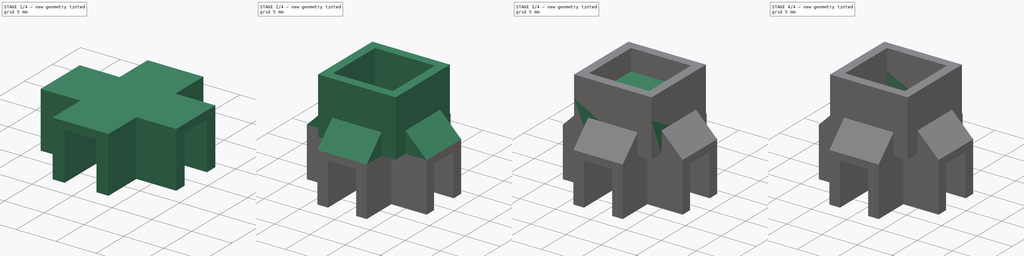
[diagram: build sequence overview — one tinted view per stage of 4, left to right]
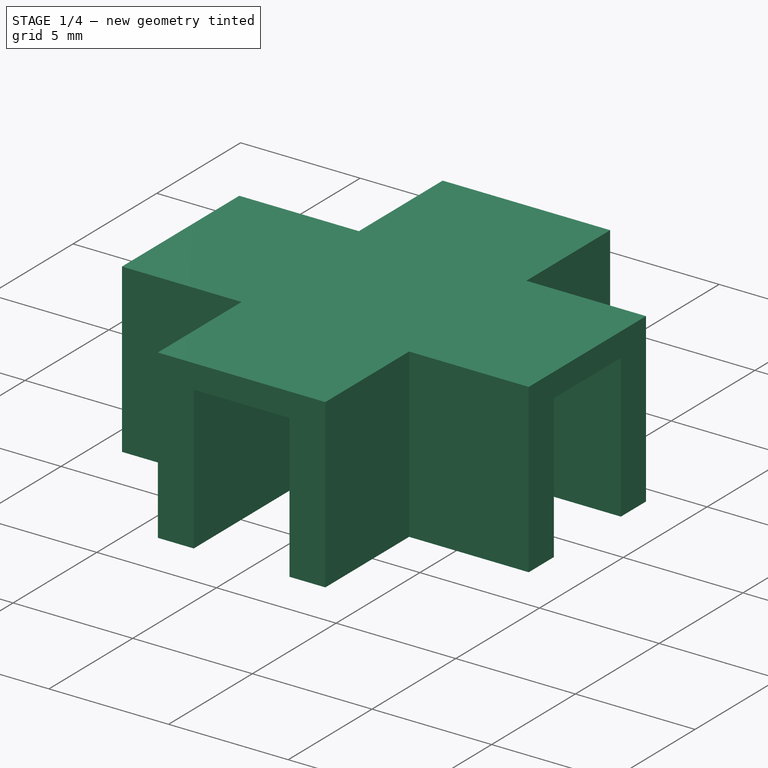
[diagram: stage 1 of 4 — iso view after this stage's code; geometry added in this stage tinted green]
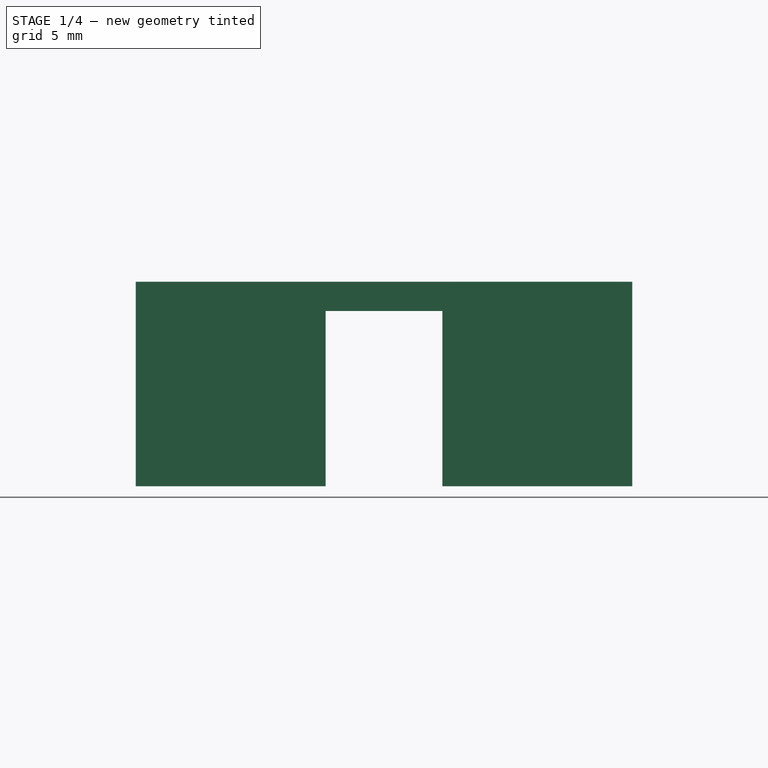
[diagram: stage 1 of 4 — front view after this stage's code; geometry added in this stage tinted green]
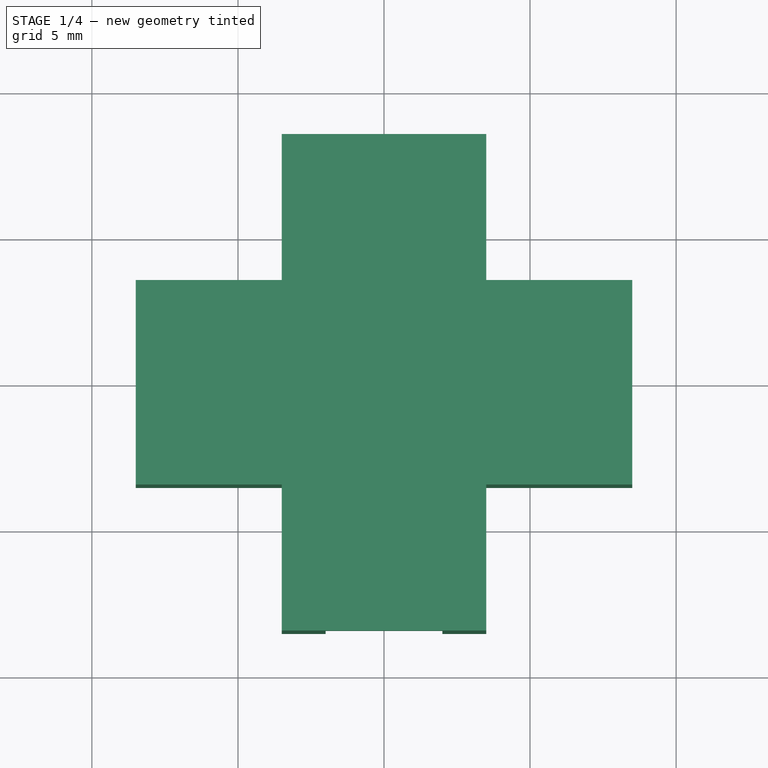
[diagram: stage 1 of 4 — top view after this stage's code; geometry added in this stage tinted green]
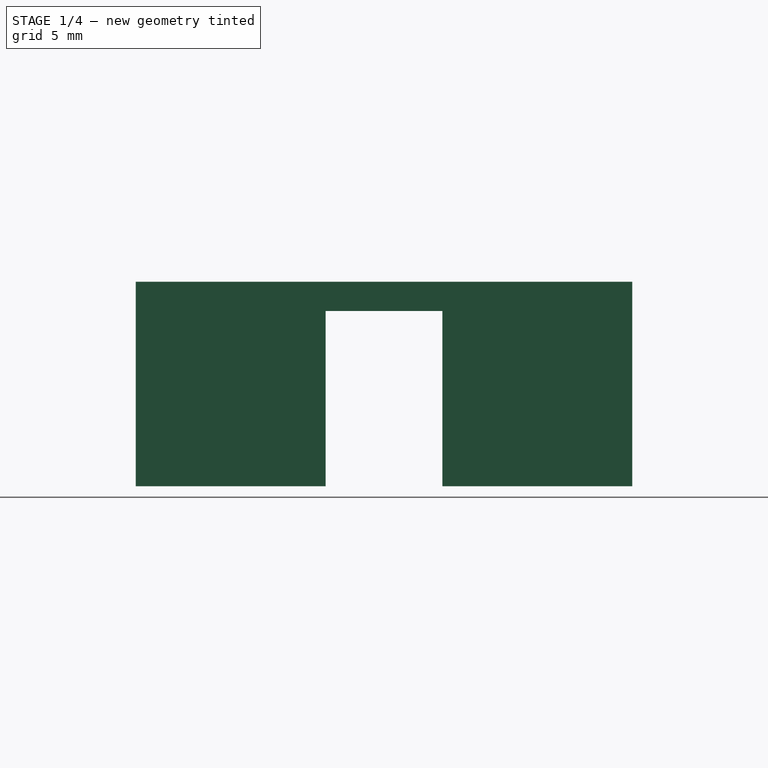
[diagram: stage 1 of 4 — right view after this stage's code; geometry added in this stage tinted green]
FCSTD DOCUMENT  (FreeCAD 0.20R29603 (Git))
Label: UnlockDroneCore
License: All rights reserved
LicenseURL: http://en.wikipedia.org/wiki/All_rights_reserved
objects: Sketcher::SketchObject×8, PartDesign::Pad×4, PartDesign::Pocket×4, PartDesign::Chamfer×2, PartDesign::Body×2
note: 30 computed .brp shape members not serialized (recipe doc carries the construction recipe); baked Part::Feature solids carry a one-line shape summary decoded from their .brp

FEATURE [PartDesign::Body] Body  label="WhitePart"
  Group = -> [Sketch,Pad,Sketch001,Pocket,Sketch002,Pad001,Sketch003,Pocket001,Chamfer]
  Origin = -> Origin
  Tip = -> Chamfer
FEATURE [Sketcher::SketchObject] Sketch004
  FullyConstrained = true
  MapMode = 5
  Support = -> [XY_Plane001]
  sketch-geometry (19):
    g0: LineSegment StartX=-8.5 StartY=3.5 StartZ=0 EndX=-8.5 EndY=-3.5 EndZ=0
    g1: LineSegment StartX=-8.5 StartY=-3.5 StartZ=0 EndX=-3.5 EndY=-3.5 EndZ=0
    g2: LineSegment StartX=8.5 StartY=-3.5 StartZ=0 EndX=8.5 EndY=3.5 EndZ=0
    g3: LineSegment StartX=8.5 StartY=3.5 StartZ=0 EndX=3.5 EndY=3.5 EndZ=0
    g4: GeomPoint X=0 Y=0 Z=0
    g5: LineSegment StartX=-3.5 StartY=8.5 StartZ=0 EndX=-3.5 EndY=3.5 EndZ=0
    g6: LineSegment StartX=-3.5 StartY=-8.5 StartZ=0 EndX=3.5 EndY=-8.5 EndZ=0
    g7: LineSegment StartX=3.5 StartY=-8.5 StartZ=0 EndX=3.5 EndY=-3.5 EndZ=0
    g8: LineSegment StartX=3.5 StartY=8.5 StartZ=0 EndX=-3.5 EndY=8.5 EndZ=0
    g9: GeomPoint X=0 Y=0 Z=0
    g10: LineSegment StartX=3.5 StartY=3.5 StartZ=0 EndX=3.5 EndY=8.5 EndZ=0
    g11: LineSegment StartX=-3.5 StartY=3.5 StartZ=0 EndX=-8.5 EndY=3.5 EndZ=0
    g12: LineSegment StartX=-3.5 StartY=-3.5 StartZ=0 EndX=-3.5 EndY=-8.5 EndZ=0
    g13: LineSegment StartX=3.5 StartY=-3.5 StartZ=0 EndX=8.5 EndY=-3.5 EndZ=0
    g14: LineSegment StartX=-3.5 StartY=3.5 StartZ=0 EndX=-3.5 EndY=-3.5 EndZ=0
    g15: LineSegment StartX=-3.5 StartY=-3.5 StartZ=0 EndX=3.5 EndY=-3.5 EndZ=0
    g16: LineSegment StartX=3.5 StartY=-3.5 StartZ=0 EndX=3.5 EndY=3.5 EndZ=0
    g17: LineSegment StartX=3.5 StartY=3.5 StartZ=0 EndX=-3.5 EndY=3.5 EndZ=0
    g18: GeomPoint X=0 Y=0 Z=0
  constraints (44):
    c: Coincident(g0,g1)
    c: Coincident(g13,g2)
    c: Coincident(g2,g3)
    c: Coincident(g11,g0)
    c: Horizontal(g1)
    c: Horizontal(g3)
    c: Vertical(g0)
    c: Vertical(g2)
    c: Symmetric(g13,g0,g4)
    c: Coincident(g4,g-1)
    c: DistanceX(g11,g3) = 17
    c: DistanceY(g2,g2) = 7
    c: Coincident(g12,g6)
    c: Coincident(g6,g7)
    c: Coincident(g10,g8)
    c: Coincident(g8,g5)
    c: Horizontal(g6)
    c: Horizontal(g8)
    c: Vertical(g5)
    c: Symmetric(g6,g5,g9)
    c: Coincident(g9,g4)
    c: DistanceX(g8,g8) = 7
    c: DistanceY(g7,g10) = 17
    c: Coincident(g3,g10)
    c: Coincident(g5,g11)
    c: Coincident(g1,g12)
    c: Coincident(g13,g7)
    c: Coincident(g14,g15)
    c: Coincident(g15,g16)
    c: Coincident(g16,g17)
    c: Coincident(g17,g14)
    c: Horizontal(g15)
    c: Horizontal(g17)
    c: Vertical(g14)
    c: Vertical(g16)
    c: Symmetric(g15,g14,g18)
    c: Coincident(g18,g4)
    c: DistanceY(g16,g16) = 7
    c: Coincident(g5,g14)
    c: Coincident(g1,g14)
    c: Coincident(g3,g16)
    c: Coincident(g15,g7)
    c: DistanceX(g17,g17) = 7
    c: Vertical(g12)
FEATURE [PartDesign::Pad] Pad002
  Direction = (0,0,1)
  Length = 7
  Length2 = 10
  Profile = -> Sketch004
  ReferenceAxis = -> Sketch004 [N_Axis]
  Type = 0
FEATURE [Sketcher::SketchObject] Sketch005
  ExternalGeometry = -> [Pad002]
  FullyConstrained = true
  MapMode = 5
  Placement = pos=(0,0,0) rot=(1,0,0;3.14159rad)
  Support = -> [Pad002]
  sketch-geometry (17):
    g0: LineSegment StartX=-8.5 StartY=-2 StartZ=0 EndX=-2 EndY=-2 EndZ=0
    g1: LineSegment StartX=-2 StartY=-2 StartZ=0 EndX=-2 EndY=-8.5 EndZ=0
    g2: LineSegment StartX=-2 StartY=-8.5 StartZ=0 EndX=2 EndY=-8.5 EndZ=0
    g3: LineSegment StartX=2 StartY=-8.5 StartZ=0 EndX=2 EndY=-2 EndZ=0
    g4: LineSegment StartX=2 StartY=-2 StartZ=0 EndX=8.5 EndY=-2 EndZ=0
    g5: LineSegment StartX=8.5 StartY=-2 StartZ=0 EndX=8.5 EndY=2 EndZ=0
    g6: LineSegment StartX=8.5 StartY=2 StartZ=0 EndX=2 EndY=2 EndZ=0
    g7: LineSegment StartX=2 StartY=2 StartZ=0 EndX=2 EndY=8.5 EndZ=0
    g8: LineSegment StartX=2 StartY=8.5 StartZ=0 EndX=-2 EndY=8.5 EndZ=0
    g9: LineSegment StartX=-2 StartY=8.5 StartZ=0 EndX=-2 EndY=2 EndZ=0
    g10: LineSegment StartX=-2 StartY=2 StartZ=0 EndX=-8.5 EndY=2 EndZ=0
    g11: LineSegment StartX=-8.5 StartY=2 StartZ=0 EndX=-8.5 EndY=-2 EndZ=0
    g12: LineSegment StartX=-2 StartY=2 StartZ=0 EndX=-2 EndY=-2 EndZ=0
    g13: LineSegment StartX=-2 StartY=-2 StartZ=0 EndX=2 EndY=-2 EndZ=0
    g14: LineSegment StartX=2 StartY=-2 StartZ=0 EndX=2 EndY=2 EndZ=0
    g15: LineSegment StartX=2 StartY=2 StartZ=0 EndX=-2 EndY=2 EndZ=0
    g16: GeomPoint X=0 Y=0 Z=0
  constraints (44):
    c: Horizontal(g0)
    c: Coincident(g0,g1)
    c: Vertical(g1)
    c: Coincident(g1,g2)
    c: Horizontal(g2)
    c: Coincident(g2,g3)
    c: Vertical(g3)
    c: Coincident(g3,g4)
    c: Horizontal(g4)
    c: Coincident(g4,g5)
    c: Coincident(g5,g6)
    c: Coincident(g6,g7)
    c: Coincident(g7,g8)
    c: Coincident(g8,g9)
    c: Coincident(g9,g10)
    c: Coincident(g10,g11)
    c: Coincident(g11,g0)
    c: Coincident(g12,g13)
    c: Coincident(g13,g14)
    c: Coincident(g14,g15)
    c: Coincident(g15,g12)
    c: Horizontal(g13)
    c: Horizontal(g15)
    c: Vertical(g12)
    c: Vertical(g14)
    c: Symmetric(g13,g12,g16)
    c: Coincident(g16,g-1)
    c: Coincident(g14,g6)
    c: Coincident(g9,g12)
    c: Coincident(g12,g0)
    c: Coincident(g13,g3)
    c: Horizontal(g6)
    c: Horizontal(g10)
    c: Vertical(g11)
    c: Vertical(g5)
    c: Vertical(g7)
    c: Vertical(g9)
    c: Horizontal(g8)
    c: DistanceY(g5,g5) = 4
    c: Equal(g5,g8)
    c: PointOnObject(g10,g-6)
    c: PointOnObject(g8,g-3)
    c: PointOnObject(g5,g-4)
    c: PointOnObject(g2,g-5)
FEATURE [PartDesign::Pocket] Pocket002
  BaseFeature = -> Pad002
  Direction = (0,0,1)
  Length = 6
  Length2 = 5
  Profile = -> Sketch005
  ReferenceAxis = -> Sketch005 [N_Axis]
  Type = 0
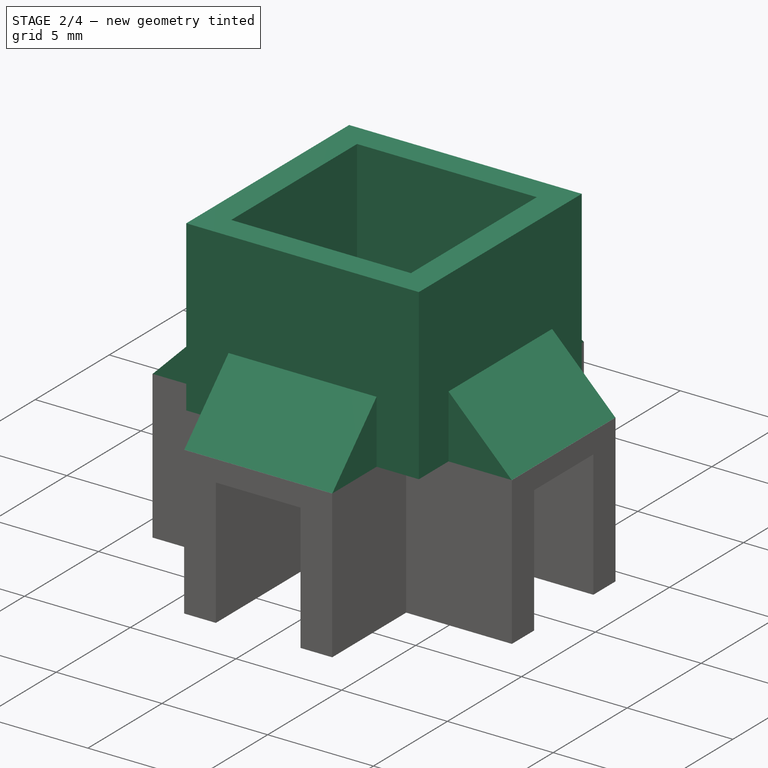
[diagram: stage 2 of 4 — iso view after this stage's code; geometry added in this stage tinted green]
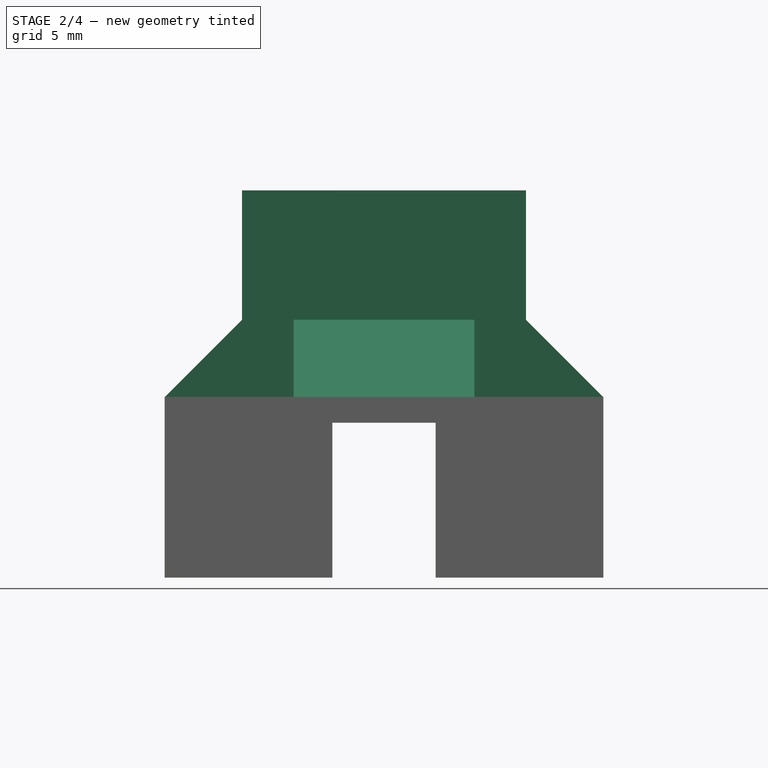
[diagram: stage 2 of 4 — front view after this stage's code; geometry added in this stage tinted green]
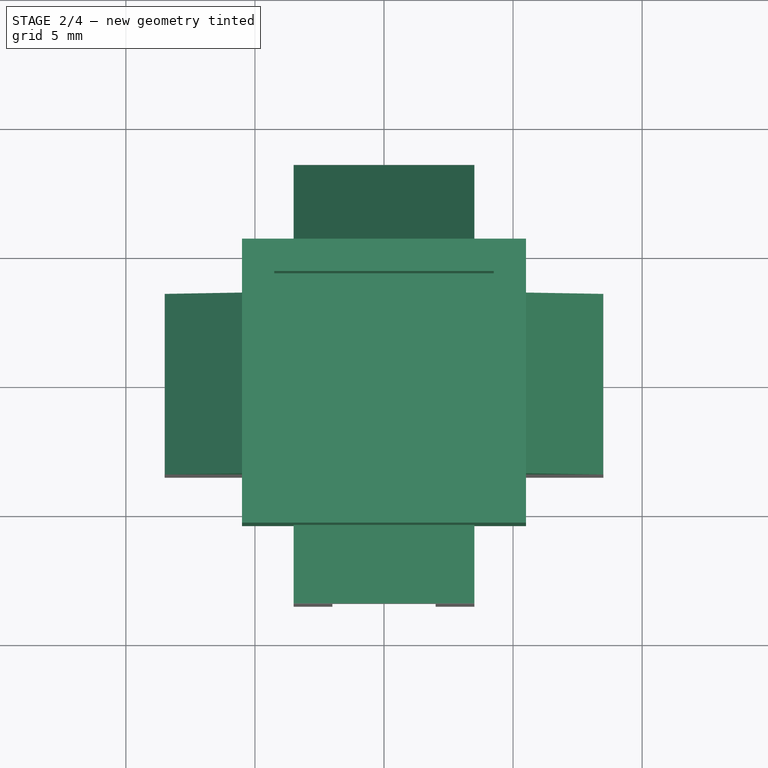
[diagram: stage 2 of 4 — top view after this stage's code; geometry added in this stage tinted green]
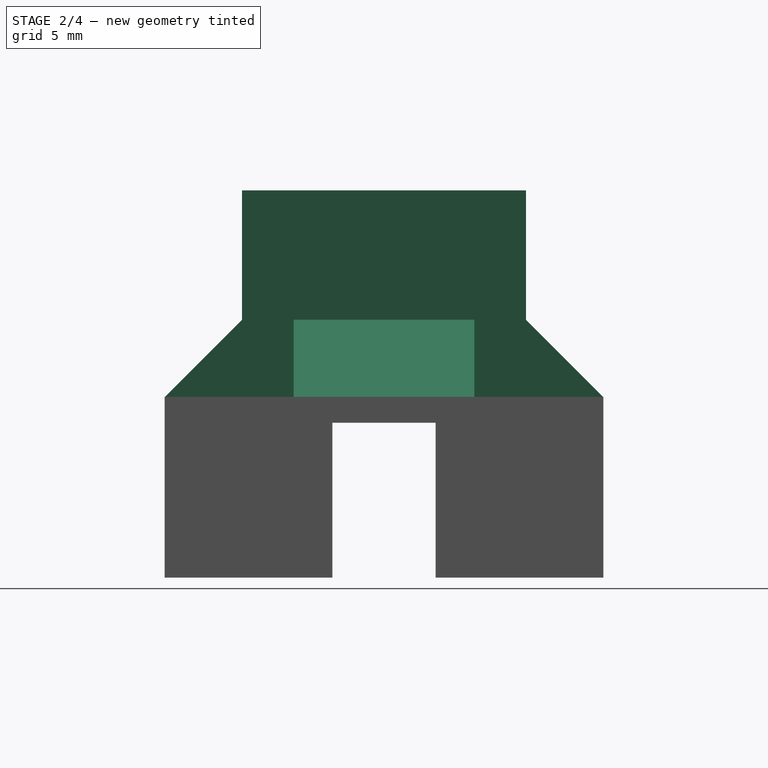
[diagram: stage 2 of 4 — right view after this stage's code; geometry added in this stage tinted green]
FEATURE [Sketcher::SketchObject] Sketch006
  FullyConstrained = true
  MapMode = 5
  Placement = pos=(0,0,7) rot=(0,0,1;0rad)
  Support = -> [Pocket002]
  sketch-geometry (5):
    g0: LineSegment StartX=-5.5 StartY=5.5 StartZ=0 EndX=-5.5 EndY=-5.5 EndZ=0
    g1: LineSegment StartX=-5.5 StartY=-5.5 StartZ=0 EndX=5.5 EndY=-5.5 EndZ=0
    g2: LineSegment StartX=5.5 StartY=-5.5 StartZ=0 EndX=5.5 EndY=5.5 EndZ=0
    g3: LineSegment StartX=5.5 StartY=5.5 StartZ=0 EndX=-5.5 EndY=5.5 EndZ=0
    g4: GeomPoint X=0 Y=0 Z=0
  constraints (12):
    c: Coincident(g0,g1)
    c: Coincident(g1,g2)
    c: Coincident(g2,g3)
    c: Coincident(g3,g0)
    c: Horizontal(g1)
    c: Horizontal(g3)
    c: Vertical(g0)
    c: Vertical(g2)
    c: Symmetric(g1,g0,g4)
    c: Coincident(g4,g-1)
    c: DistanceY(g2,g2) = 11
    c: DistanceX(g3,g3) = 11
FEATURE [PartDesign::Pad] Pad003
  BaseFeature = -> Pocket002
  Direction = (0,0,1)
  Length = 8
  Length2 = 10
  Profile = -> Sketch006
  ReferenceAxis = -> Sketch006 [N_Axis]
  Type = 0
FEATURE [Sketcher::SketchObject] Sketch007
  FullyConstrained = true
  MapMode = 5
  Placement = pos=(0,0,15) rot=(0,0,1;0rad)
  Support = -> [Pad003]
  sketch-geometry (5):
    g0: LineSegment StartX=-4.25 StartY=4.25 StartZ=0 EndX=-4.25 EndY=-4.25 EndZ=0
    g1: LineSegment StartX=-4.25 StartY=-4.25 StartZ=0 EndX=4.25 EndY=-4.25 EndZ=0
    g2: LineSegment StartX=4.25 StartY=-4.25 StartZ=0 EndX=4.25 EndY=4.25 EndZ=0
    g3: LineSegment StartX=4.25 StartY=4.25 StartZ=0 EndX=-4.25 EndY=4.25 EndZ=0
    g4: GeomPoint X=0 Y=0 Z=0
  constraints (12):
    c: Coincident(g0,g1)
    c: Coincident(g1,g2)
    c: Coincident(g2,g3)
    c: Coincident(g3,g0)
    c: Horizontal(g1)
    c: Horizontal(g3)
    c: Vertical(g0)
    c: Vertical(g2)
    c: Symmetric(g1,g0,g4)
    c: Coincident(g4,g-1)
    c: DistanceY(g2,g2) = 8.5
    c: DistanceX(g3,g3) = 8.5
FEATURE [PartDesign::Pocket] Pocket003
  BaseFeature = -> Pad003
  Direction = (0,0,-1)
  Length = 5
  Length2 = 5
  Profile = -> Sketch007
  ReferenceAxis = -> Sketch007 [N_Axis]
  Type = 0
FEATURE [PartDesign::Chamfer] Chamfer001
  Angle = 45
  Base = -> Pocket003 [Edge86,Edge91,Edge76,Edge36]
  BaseFeature = -> Pocket003
  ChamferType = 0
  FlipDirection = false
  Size = 2.99
  Size2 = 1
  SupportTransform = false
  UseAllEdges = false
FEATURE [PartDesign::Body] Body001  label="GreenPart"
  Group = -> [Sketch004,Pad002,Sketch005,Pocket002,Sketch006,Pad003,Sketch007,Pocket003,Chamfer001]
  Origin = -> Origin001
  Tip = -> Chamfer001
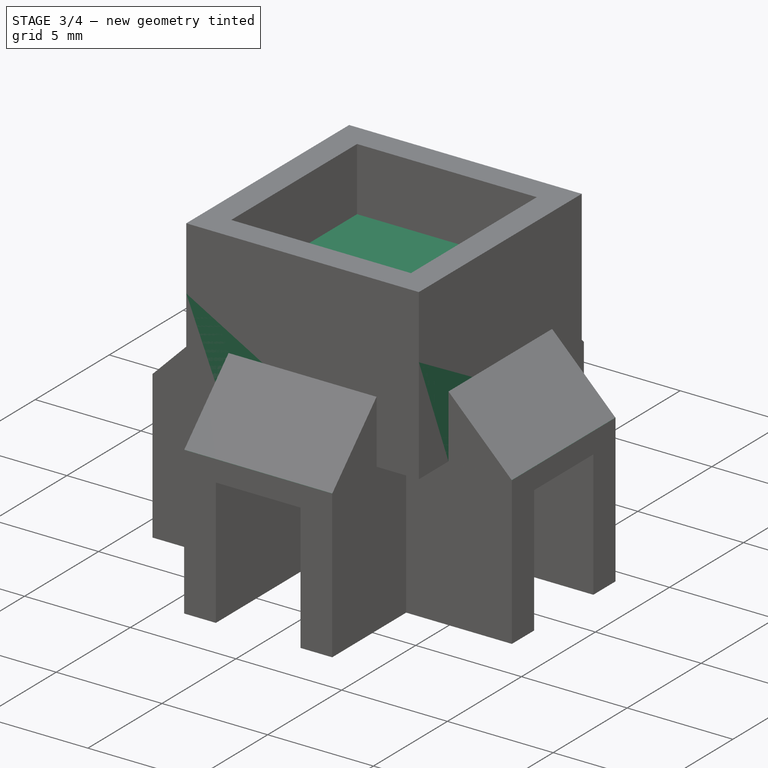
[diagram: stage 3 of 4 — iso view after this stage's code; geometry added in this stage tinted green]
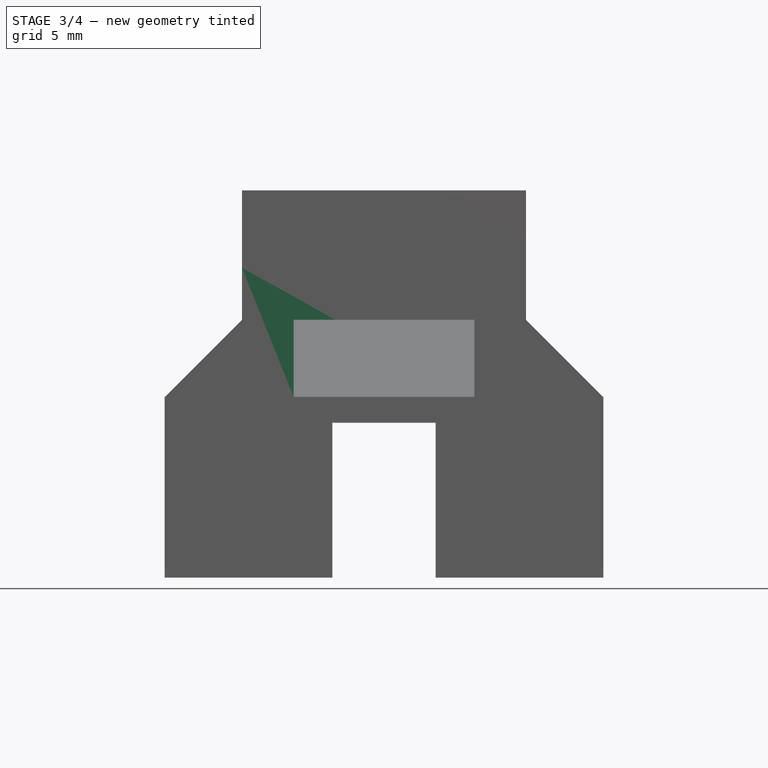
[diagram: stage 3 of 4 — front view after this stage's code; geometry added in this stage tinted green]
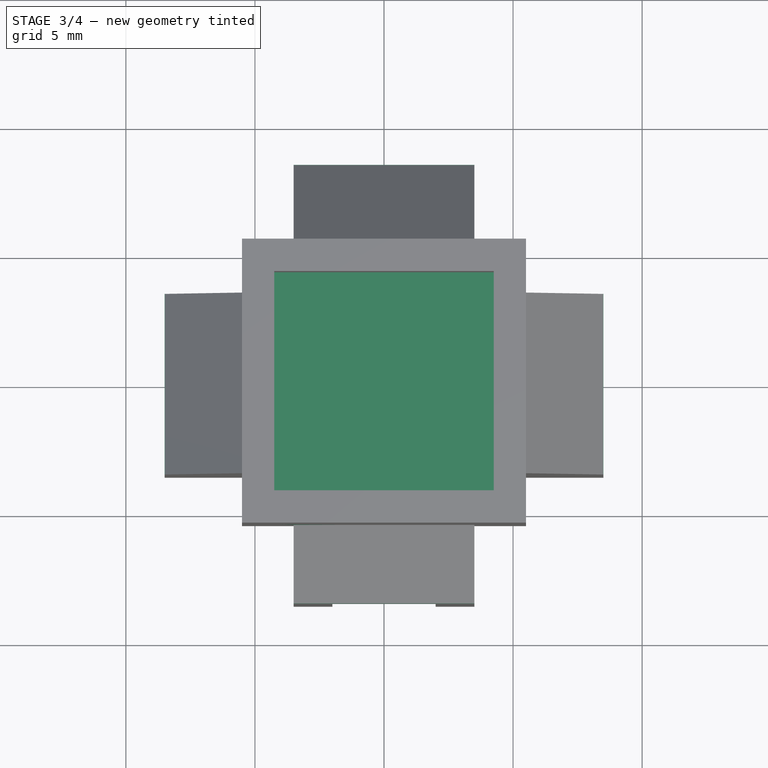
[diagram: stage 3 of 4 — top view after this stage's code; geometry added in this stage tinted green]
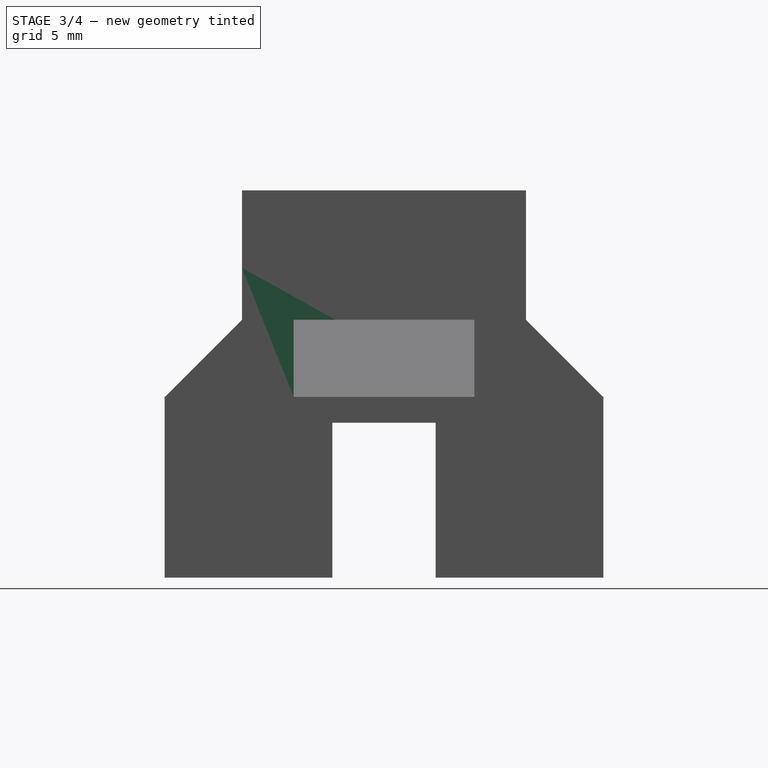
[diagram: stage 3 of 4 — right view after this stage's code; geometry added in this stage tinted green]
FEATURE [Sketcher::SketchObject] Sketch
  FullyConstrained = true
  MapMode = 5
  Support = -> [XY_Plane]
  sketch-geometry (19):
    g0: LineSegment StartX=-8.5 StartY=3.5 StartZ=0 EndX=-8.5 EndY=-3.5 EndZ=0
    g1: LineSegment StartX=-8.5 StartY=-3.5 StartZ=0 EndX=-3.5 EndY=-3.5 EndZ=0
    g2: LineSegment StartX=8.5 StartY=-3.5 StartZ=0 EndX=8.5 EndY=3.5 EndZ=0
    g3: LineSegment StartX=8.5 StartY=3.5 StartZ=0 EndX=3.5 EndY=3.5 EndZ=0
    g4: GeomPoint X=0 Y=0 Z=0
    g5: LineSegment StartX=-3.5 StartY=8.5 StartZ=0 EndX=-3.5 EndY=3.5 EndZ=0
    g6: LineSegment StartX=-3.5 StartY=-8.5 StartZ=0 EndX=3.5 EndY=-8.5 EndZ=0
    g7: LineSegment StartX=3.5 StartY=-8.5 StartZ=0 EndX=3.5 EndY=-3.5 EndZ=0
    g8: LineSegment StartX=3.5 StartY=8.5 StartZ=0 EndX=-3.5 EndY=8.5 EndZ=0
    g9: GeomPoint X=0 Y=0 Z=0
    g10: LineSegment StartX=3.5 StartY=3.5 StartZ=0 EndX=3.5 EndY=8.5 EndZ=0
    g11: LineSegment StartX=-3.5 StartY=3.5 StartZ=0 EndX=-8.5 EndY=3.5 EndZ=0
    g12: LineSegment StartX=-3.5 StartY=-3.5 StartZ=0 EndX=-3.5 EndY=-8.5 EndZ=0
    g13: LineSegment StartX=3.5 StartY=-3.5 StartZ=0 EndX=8.5 EndY=-3.5 EndZ=0
    g14: LineSegment StartX=-3.5 StartY=3.5 StartZ=0 EndX=-3.5 EndY=-3.5 EndZ=0
    g15: LineSegment StartX=-3.5 StartY=-3.5 StartZ=0 EndX=3.5 EndY=-3.5 EndZ=0
    g16: LineSegment StartX=3.5 StartY=-3.5 StartZ=0 EndX=3.5 EndY=3.5 EndZ=0
    g17: LineSegment StartX=3.5 StartY=3.5 StartZ=0 EndX=-3.5 EndY=3.5 EndZ=0
    g18: GeomPoint X=0 Y=0 Z=0
  constraints (44):
    c: Coincident(g0,g1)
    c: Coincident(g13,g2)
    c: Coincident(g2,g3)
    c: Coincident(g11,g0)
    c: Horizontal(g1)
    c: Horizontal(g3)
    c: Vertical(g0)
    c: Vertical(g2)
    c: Symmetric(g13,g0,g4)
    c: Coincident(g4,g-1)
    c: DistanceX(g11,g3) = 17
    c: DistanceY(g2,g2) = 7
    c: Coincident(g12,g6)
    c: Coincident(g6,g7)
    c: Coincident(g10,g8)
    c: Coincident(g8,g5)
    c: Horizontal(g6)
    c: Horizontal(g8)
    c: Vertical(g5)
    c: Symmetric(g6,g5,g9)
    c: Coincident(g9,g4)
    c: DistanceX(g8,g8) = 7
    c: DistanceY(g7,g10) = 17
    c: Coincident(g3,g10)
    c: Coincident(g5,g11)
    c: Coincident(g1,g12)
    c: Coincident(g13,g7)
    c: Coincident(g14,g15)
    c: Coincident(g15,g16)
    c: Coincident(g16,g17)
    c: Coincident(g17,g14)
    c: Horizontal(g15)
    c: Horizontal(g17)
    c: Vertical(g14)
    c: Vertical(g16)
    c: Symmetric(g15,g14,g18)
    c: Coincident(g18,g4)
    c: DistanceY(g16,g16) = 7
    c: Coincident(g5,g14)
    c: Coincident(g1,g14)
    c: Coincident(g3,g16)
    c: Coincident(g15,g7)
    c: DistanceX(g17,g17) = 7
    c: Vertical(g12)
FEATURE [PartDesign::Pad] Pad
  Direction = (0,0,1)
  Length = 7
  Length2 = 10
  Profile = -> Sketch
  ReferenceAxis = -> Sketch [N_Axis]
  Type = 0
FEATURE [Sketcher::SketchObject] Sketch001
  ExternalGeometry = -> [Pad]
  FullyConstrained = true
  MapMode = 5
  Placement = pos=(0,0,0) rot=(1,0,0;3.14159rad)
  Support = -> [Pad]
  sketch-geometry (17):
    g0: LineSegment StartX=-8.5 StartY=-2 StartZ=0 EndX=-2 EndY=-2 EndZ=0
    g1: LineSegment StartX=-2 StartY=-2 StartZ=0 EndX=-2 EndY=-8.5 EndZ=0
    g2: LineSegment StartX=-2 StartY=-8.5 StartZ=0 EndX=2 EndY=-8.5 EndZ=0
    g3: LineSegment StartX=2 StartY=-8.5 StartZ=0 EndX=2 EndY=-2 EndZ=0
    g4: LineSegment StartX=2 StartY=-2 StartZ=0 EndX=8.5 EndY=-2 EndZ=0
    g5: LineSegment StartX=8.5 StartY=-2 StartZ=0 EndX=8.5 EndY=2 EndZ=0
    g6: LineSegment StartX=8.5 StartY=2 StartZ=0 EndX=2 EndY=2 EndZ=0
    g7: LineSegment StartX=2 StartY=2 StartZ=0 EndX=2 EndY=8.5 EndZ=0
    g8: LineSegment StartX=2 StartY=8.5 StartZ=0 EndX=-2 EndY=8.5 EndZ=0
    g9: LineSegment StartX=-2 StartY=8.5 StartZ=0 EndX=-2 EndY=2 EndZ=0
    g10: LineSegment StartX=-2 StartY=2 StartZ=0 EndX=-8.5 EndY=2 EndZ=0
    g11: LineSegment StartX=-8.5 StartY=2 StartZ=0 EndX=-8.5 EndY=-2 EndZ=0
    g12: LineSegment StartX=-2 StartY=2 StartZ=0 EndX=-2 EndY=-2 EndZ=0
    g13: LineSegment StartX=-2 StartY=-2 StartZ=0 EndX=2 EndY=-2 EndZ=0
    g14: LineSegment StartX=2 StartY=-2 StartZ=0 EndX=2 EndY=2 EndZ=0
    g15: LineSegment StartX=2 StartY=2 StartZ=0 EndX=-2 EndY=2 EndZ=0
    g16: GeomPoint X=0 Y=0 Z=0
  constraints (44):
    c: Horizontal(g0)
    c: Coincident(g0,g1)
    c: Vertical(g1)
    c: Coincident(g1,g2)
    c: Horizontal(g2)
    c: Coincident(g2,g3)
    c: Vertical(g3)
    c: Coincident(g3,g4)
    c: Horizontal(g4)
    c: Coincident(g4,g5)
    c: Coincident(g5,g6)
    c: Coincident(g6,g7)
    c: Coincident(g7,g8)
    c: Coincident(g8,g9)
    c: Coincident(g9,g10)
    c: Coincident(g10,g11)
    c: Coincident(g11,g0)
    c: Coincident(g12,g13)
    c: Coincident(g13,g14)
    c: Coincident(g14,g15)
    c: Coincident(g15,g12)
    c: Horizontal(g13)
    c: Horizontal(g15)
    c: Vertical(g12)
    c: Vertical(g14)
    c: Symmetric(g13,g12,g16)
    c: Coincident(g16,g-1)
    c: Coincident(g14,g6)
    c: Coincident(g9,g12)
    c: Coincident(g12,g0)
    c: Coincident(g13,g3)
    c: Horizontal(g6)
    c: Horizontal(g10)
    c: Vertical(g11)
    c: Vertical(g5)
    c: Vertical(g7)
    c: Vertical(g9)
    c: Horizontal(g8)
    c: DistanceY(g5,g5) = 4
    c: Equal(g5,g8)
    c: PointOnObject(g10,g-6)
    c: PointOnObject(g8,g-3)
    c: PointOnObject(g5,g-4)
    c: PointOnObject(g2,g-5)
FEATURE [PartDesign::Pocket] Pocket
  BaseFeature = -> Pad
  Direction = (0,0,1)
  Length = 6
  Length2 = 5
  Profile = -> Sketch001
  ReferenceAxis = -> Sketch001 [N_Axis]
  Type = 0
FEATURE [Sketcher::SketchObject] Sketch002
  FullyConstrained = true
  MapMode = 5
  Placement = pos=(0,0,7) rot=(0,0,1;0rad)
  Support = -> [Pocket]
  sketch-geometry (5):
    g0: LineSegment StartX=-5.5 StartY=5.5 StartZ=0 EndX=-5.5 EndY=-5.5 EndZ=0
    g1: LineSegment StartX=-5.5 StartY=-5.5 StartZ=0 EndX=5.5 EndY=-5.5 EndZ=0
    g2: LineSegment StartX=5.5 StartY=-5.5 StartZ=0 EndX=5.5 EndY=5.5 EndZ=0
    g3: LineSegment StartX=5.5 StartY=5.5 StartZ=0 EndX=-5.5 EndY=5.5 EndZ=0
    g4: GeomPoint X=0 Y=0 Z=0
  constraints (12):
    c: Coincident(g0,g1)
    c: Coincident(g1,g2)
    c: Coincident(g2,g3)
    c: Coincident(g3,g0)
    c: Horizontal(g1)
    c: Horizontal(g3)
    c: Vertical(g0)
    c: Vertical(g2)
    c: Symmetric(g1,g0,g4)
    c: Coincident(g4,g-1)
    c: DistanceY(g2,g2) = 11
    c: DistanceX(g3,g3) = 11
FEATURE [PartDesign::Pad] Pad001
  BaseFeature = -> Pocket
  Direction = (0,0,1)
  Length = 5
  Length2 = 10
  Profile = -> Sketch002
  ReferenceAxis = -> Sketch002 [N_Axis]
  Type = 0
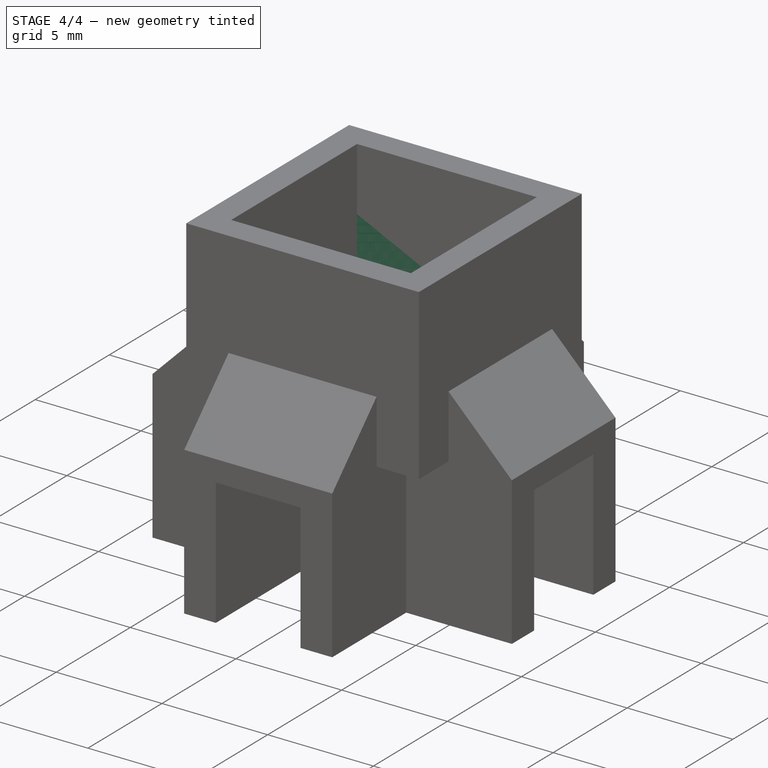
[diagram: stage 4 of 4 — iso view after this stage's code; geometry added in this stage tinted green]
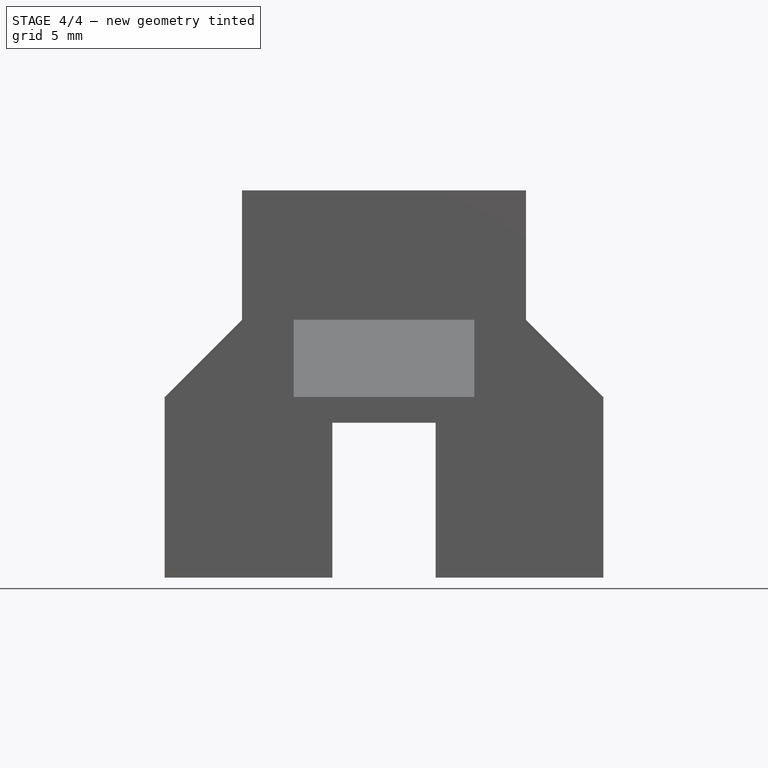
[diagram: stage 4 of 4 — front view after this stage's code; geometry added in this stage tinted green]
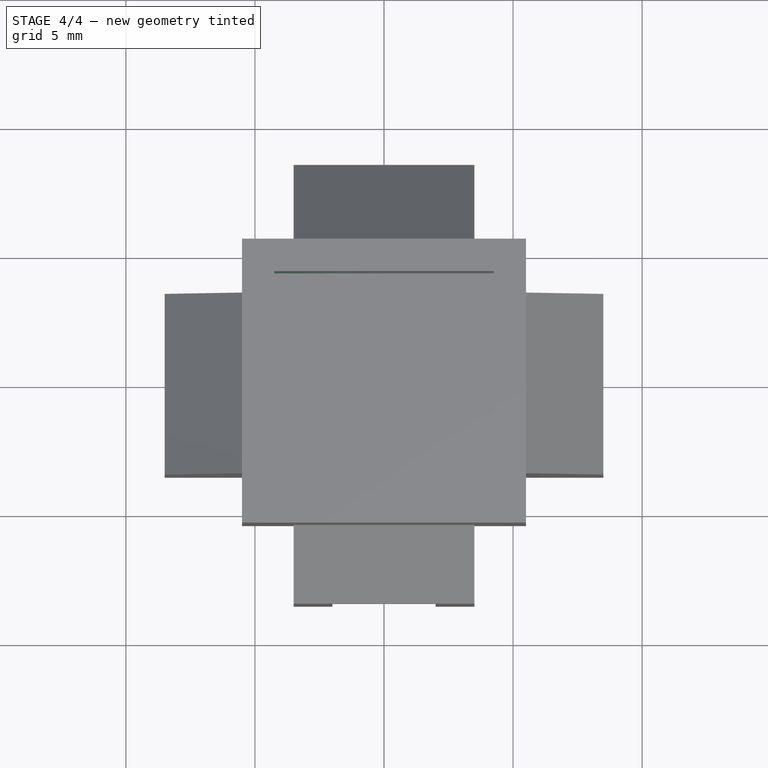
[diagram: stage 4 of 4 — top view after this stage's code; geometry added in this stage tinted green]
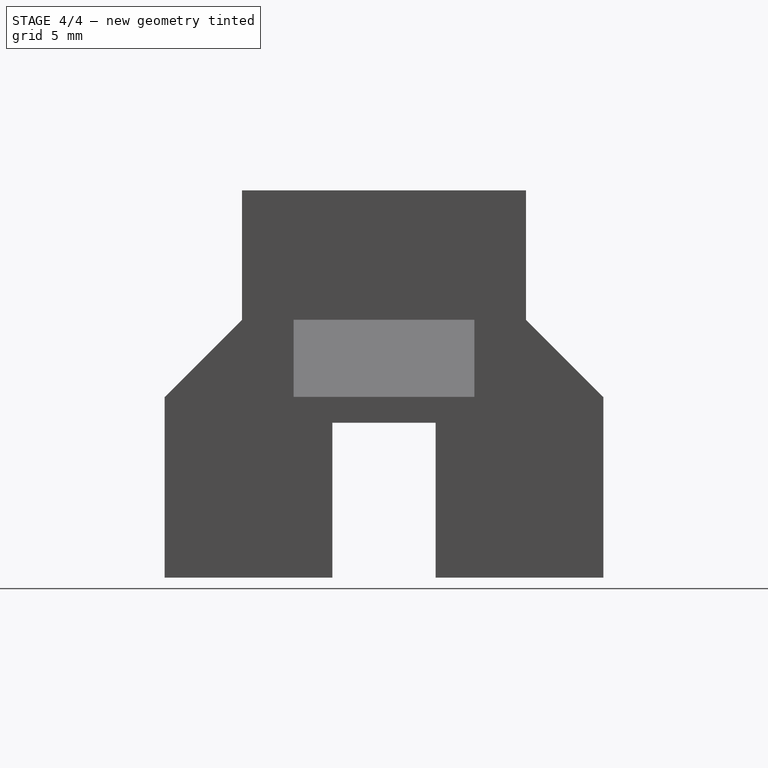
[diagram: stage 4 of 4 — right view after this stage's code; geometry added in this stage tinted green]
FEATURE [Sketcher::SketchObject] Sketch003
  FullyConstrained = true
  MapMode = 5
  Placement = pos=(0,0,12) rot=(0,0,1;0rad)
  Support = -> [Pad001]
  sketch-geometry (5):
    g0: LineSegment StartX=-4.25 StartY=4.25 StartZ=0 EndX=-4.25 EndY=-4.25 EndZ=0
    g1: LineSegment StartX=-4.25 StartY=-4.25 StartZ=0 EndX=4.25 EndY=-4.25 EndZ=0
    g2: LineSegment StartX=4.25 StartY=-4.25 StartZ=0 EndX=4.25 EndY=4.25 EndZ=0
    g3: LineSegment StartX=4.25 StartY=4.25 StartZ=0 EndX=-4.25 EndY=4.25 EndZ=0
    g4: GeomPoint X=0 Y=0 Z=0
  constraints (12):
    c: Coincident(g0,g1)
    c: Coincident(g1,g2)
    c: Coincident(g2,g3)
    c: Coincident(g3,g0)
    c: Horizontal(g1)
    c: Horizontal(g3)
    c: Vertical(g0)
    c: Vertical(g2)
    c: Symmetric(g1,g0,g4)
    c: Coincident(g4,g-1)
    c: DistanceY(g2,g2) = 8.5
    c: DistanceX(g3,g3) = 8.5
FEATURE [PartDesign::Pocket] Pocket001
  BaseFeature = -> Pad001
  Direction = (0,0,-1)
  Length = 4
  Length2 = 5
  Profile = -> Sketch003
  ReferenceAxis = -> Sketch003 [N_Axis]
  Type = 0
FEATURE [PartDesign::Chamfer] Chamfer
  Angle = 45
  Base = -> Pocket001 [Edge86,Edge91,Edge76,Edge36]
  BaseFeature = -> Pocket001
  ChamferType = 0
  FlipDirection = false
  Size = 2.99
  Size2 = 1
  SupportTransform = false
  UseAllEdges = false
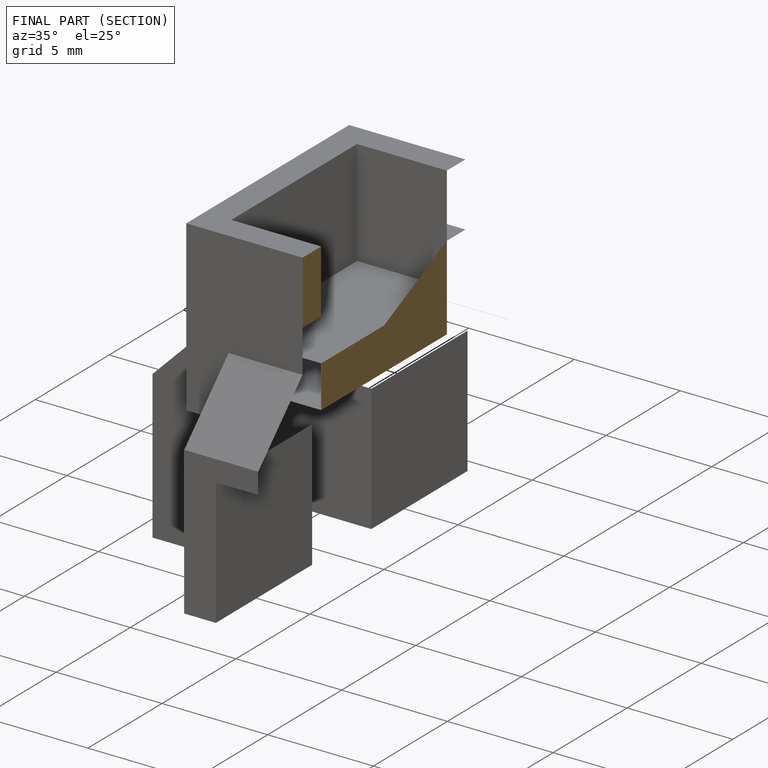
[diagram: finished part — half-section view (interior)]
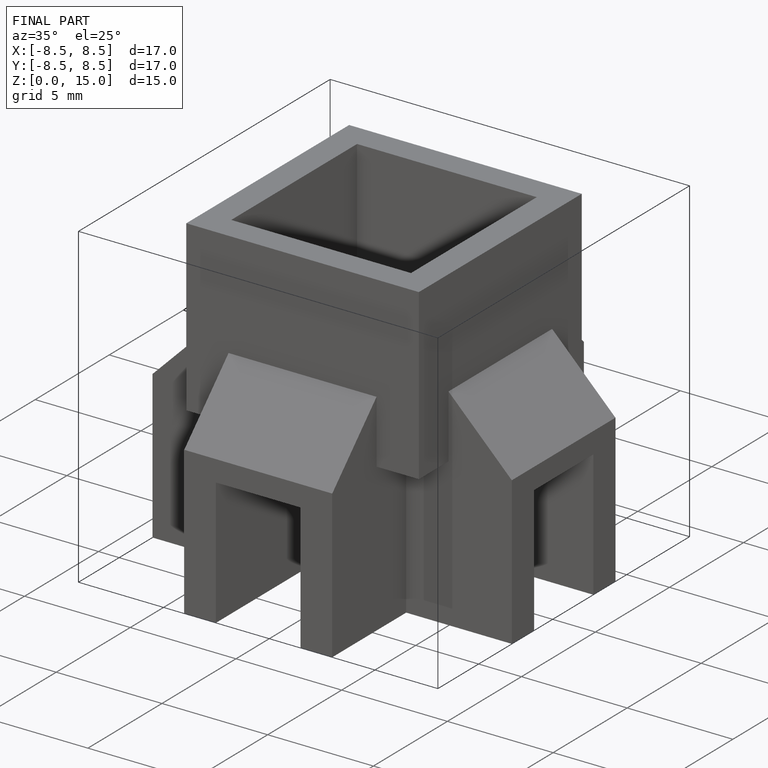
[diagram: finished part — iso view with bounding-box wireframe]
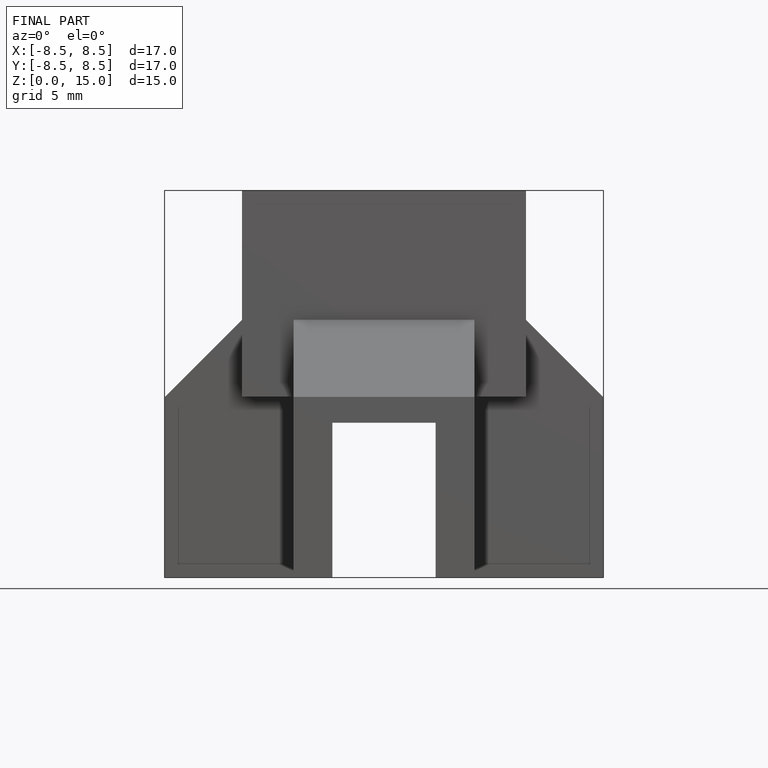
[diagram: finished part — front view with bounding-box wireframe]
